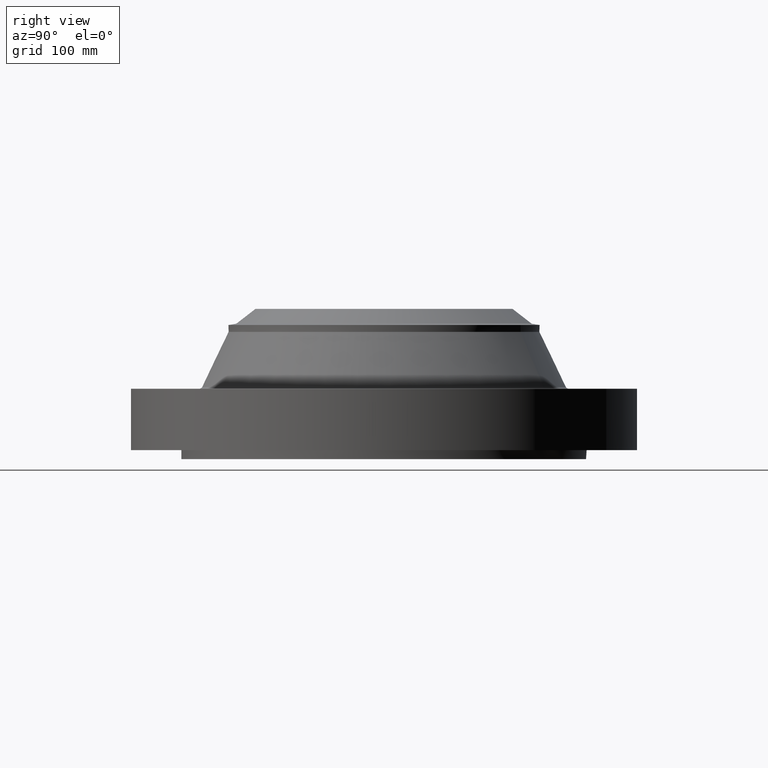
[diagram: clean part render]
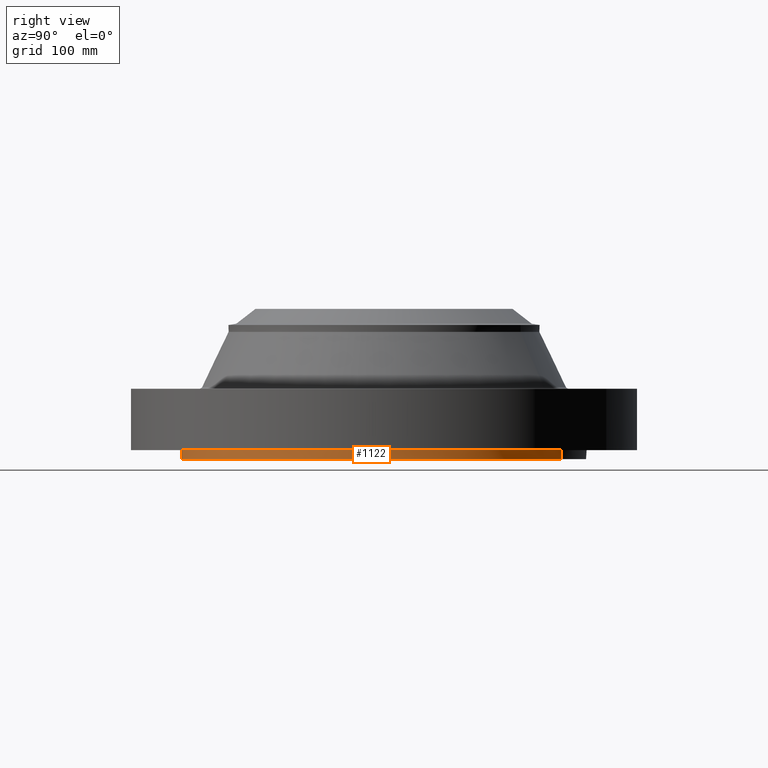
[diagram: same view with one face highlighted and labeled with its STEP entity id]
A machine part, right view. The second image highlights one B-rep face of the part: STEP entity #1122.
In plain terms, the highlighted cylindrical surface (partial cylindrical patch) has radius 177.8 mm, axis along (0, 0, -1).
Its self-contained STEP definition (entity closure, byte-faithful):
#184=AXIS2_PLACEMENT_3D('Circle Axis2P3D',#182,#183,$) ;
#385=AXIS2_PLACEMENT_3D('Circle Axis2P3D',#383,#384,$) ;
#411=AXIS2_PLACEMENT_3D('Circle Axis2P3D',#409,#410,$) ;
#437=AXIS2_PLACEMENT_3D('Circle Axis2P3D',#435,#436,$) ;
#463=AXIS2_PLACEMENT_3D('Circle Axis2P3D',#461,#462,$) ;
#489=AXIS2_PLACEMENT_3D('Circle Axis2P3D',#487,#488,$) ;
#515=AXIS2_PLACEMENT_3D('Circle Axis2P3D',#513,#514,$) ;
#541=AXIS2_PLACEMENT_3D('Circle Axis2P3D',#539,#540,$) ;
#567=AXIS2_PLACEMENT_3D('Circle Axis2P3D',#565,#566,$) ;
#1087=AXIS2_PLACEMENT_3D('Cylinder Axis2P3D',#1084,#1085,#1086) ;
#1091=AXIS2_PLACEMENT_3D('Circle Axis2P3D',#1089,#1090,$) ;
#167=CARTESIAN_POINT('Vertex',(4.94974746833,4.94974746833,-3.14177380524E-012)) ;
#182=CARTESIAN_POINT('Axis2P3D Location',(5.2014301877E-010,8.78804850413E-010,0.)) ;
#186=CARTESIAN_POINT('Vertex',(3.35597877024,6.14307793326,-3.14177380524E-012)) ;
#380=CARTESIAN_POINT('Vertex',(-3.35597877025,-6.14307793326,-3.14177380524E-012)) ;
#383=CARTESIAN_POINT('Axis2P3D Location',(3.58732997813E-009,7.8527180209E-009,0.)) ;
#387=CARTESIAN_POINT('Vertex',(-2.67878402657,-6.4671567276,-3.14177380524E-012)) ;
#409=CARTESIAN_POINT('Axis2P3D Location',(-2.34735205901E-010,-1.3264288705E-009,0.)) ;
#413=CARTESIAN_POINT('Vertex',(2.01413688877E-014,-7.00000000003,-3.14177380524E-012)) ;
#435=CARTESIAN_POINT('Axis2P3D Location',(2.34733947066E-010,-1.32642215671E-009,0.)) ;
#439=CARTESIAN_POINT('Vertex',(2.67878402657,-6.4671567276,-3.14177380524E-012)) ;
#461=CARTESIAN_POINT('Axis2P3D Location',(1.09747130019E-009,-1.71006040474E-009,0.)) ;
#465=CARTESIAN_POINT('Vertex',(4.94974746833,-4.94974746833,-3.14177380524E-012)) ;
#487=CARTESIAN_POINT('Axis2P3D Location',(1.71072171302E-009,-1.09679936174E-009,0.)) ;
#491=CARTESIAN_POINT('Vertex',(6.4671567276,-2.67878402657,-3.14177380524E-012)) ;
#513=CARTESIAN_POINT('Axis2P3D Location',(1.32709689257E-009,-2.34067323704E-010,0.)) ;
#517=CARTESIAN_POINT('Vertex',(7.00000000003,1.95818864186E-014,-3.14177380524E-012)) ;
#539=CARTESIAN_POINT('Axis2P3D Location',(1.32709017878E-009,2.35402248875E-010,0.)) ;
#543=CARTESIAN_POINT('Vertex',(6.4671567276,2.67878402657,-3.14177380524E-012)) ;
#565=CARTESIAN_POINT('Axis2P3D Location',(1.71072842681E-009,1.09813988174E-009,0.)) ;
#1084=CARTESIAN_POINT('Axis2P3D Location',(0.,0.,2.28350000001)) ;
#1089=CARTESIAN_POINT('Axis2P3D Location',(0.,0.,-0.313000000034)) ;
#1093=CARTESIAN_POINT('Vertex',(3.35597877025,6.14307793326,-0.313000000034)) ;
#1095=CARTESIAN_POINT('Vertex',(-3.35597877024,-6.14307793325,-0.313000000001)) ;
#1098=CARTESIAN_POINT('Line Origine',(3.35597877025,6.14307793326,-0.156500000018)) ;
#1103=CARTESIAN_POINT('Line Origine',(-3.35597877025,-6.14307793326,-0.156500000018)) ;
#183=DIRECTION('Axis2P3D Direction',(0.,0.,-0.0393700787402)) ;
#384=DIRECTION('Axis2P3D Direction',(0.,0.,-0.0393700787402)) ;
#410=DIRECTION('Axis2P3D Direction',(0.,0.,-0.0393700787402)) ;
#436=DIRECTION('Axis2P3D Direction',(0.,0.,-0.0393700787402)) ;
#462=DIRECTION('Axis2P3D Direction',(0.,0.,-0.0393700787402)) ;
#488=DIRECTION('Axis2P3D Direction',(0.,0.,-0.0393700787402)) ;
#514=DIRECTION('Axis2P3D Direction',(0.,0.,-0.0393700787402)) ;
#540=DIRECTION('Axis2P3D Direction',(0.,0.,-0.0393700787402)) ;
#566=DIRECTION('Axis2P3D Direction',(0.,0.,-0.0393700787402)) ;
#1085=DIRECTION('Axis2P3D Direction',(0.,0.,-0.0393700787402)) ;
#1086=DIRECTION('Axis2P3D XDirection',(0.0188750212049,0.0345504945626,0.)) ;
#1090=DIRECTION('Axis2P3D Direction',(0.,0.,-0.0393700787402)) ;
#1099=DIRECTION('Vector Direction',(0.,0.,-0.0393700787402)) ;
#1104=DIRECTION('Vector Direction',(0.,0.,-0.0393700787402)) ;
#1100=VECTOR('Line Direction',#1099,0.0393700787402) ;
#1105=VECTOR('Line Direction',#1104,0.0393700787402) ;
#1109=ORIENTED_EDGE('',*,*,#1097,.F.) ;
#1110=ORIENTED_EDGE('',*,*,#1102,.T.) ;
#1111=ORIENTED_EDGE('',*,*,#188,.T.) ;
#1112=ORIENTED_EDGE('',*,*,#569,.T.) ;
#1113=ORIENTED_EDGE('',*,*,#545,.T.) ;
#1114=ORIENTED_EDGE('',*,*,#519,.T.) ;
#1115=ORIENTED_EDGE('',*,*,#493,.T.) ;
#1116=ORIENTED_EDGE('',*,*,#467,.T.) ;
#1117=ORIENTED_EDGE('',*,*,#441,.T.) ;
#1118=ORIENTED_EDGE('',*,*,#415,.T.) ;
#1119=ORIENTED_EDGE('',*,*,#389,.T.) ;
#1120=ORIENTED_EDGE('',*,*,#1107,.F.) ;
#1122=ADVANCED_FACE('PartBody',(#1121),#1088,.T.) ;
#185=CIRCLE('generated circle',#184,6.99999999901) ;
#386=CIRCLE('generated circle',#385,7.00000000865) ;
#412=CIRCLE('generated circle',#411,6.9999999987) ;
#438=CIRCLE('generated circle',#437,6.9999999987) ;
#464=CIRCLE('generated circle',#463,6.99999999802) ;
#490=CIRCLE('generated circle',#489,6.99999999802) ;
#516=CIRCLE('generated circle',#515,6.9999999987) ;
#542=CIRCLE('generated circle',#541,6.9999999987) ;
#568=CIRCLE('generated circle',#567,6.99999999802) ;
#1092=CIRCLE('generated circle',#1091,7.00000000003) ;
#1088=CYLINDRICAL_SURFACE('generated cylinder',#1087,7.00000000003) ;
#188=EDGE_CURVE('',#187,#168,#185,.T.) ;
#389=EDGE_CURVE('',#388,#381,#386,.T.) ;
#415=EDGE_CURVE('',#414,#388,#412,.T.) ;
#441=EDGE_CURVE('',#440,#414,#438,.T.) ;
#467=EDGE_CURVE('',#466,#440,#464,.T.) ;
#493=EDGE_CURVE('',#492,#466,#490,.T.) ;
#519=EDGE_CURVE('',#518,#492,#516,.T.) ;
#545=EDGE_CURVE('',#544,#518,#542,.T.) ;
#569=EDGE_CURVE('',#168,#544,#568,.T.) ;
#1097=EDGE_CURVE('',#1094,#1096,#1092,.T.) ;
#1102=EDGE_CURVE('',#1094,#187,#1101,.F.) ;
#1107=EDGE_CURVE('',#1096,#381,#1106,.F.) ;
#1108=EDGE_LOOP('',(#1109,#1110,#1111,#1112,#1113,#1114,#1115,#1116,#1117,#1118,#1119,#1120)) ;
#1121=FACE_OUTER_BOUND('',#1108,.T.) ;
#1101=LINE('Line',#1098,#1100) ;
#1106=LINE('Line',#1103,#1105) ;
#168=VERTEX_POINT('',#167) ;
#187=VERTEX_POINT('',#186) ;
#381=VERTEX_POINT('',#380) ;
#388=VERTEX_POINT('',#387) ;
#414=VERTEX_POINT('',#413) ;
#440=VERTEX_POINT('',#439) ;
#466=VERTEX_POINT('',#465) ;
#492=VERTEX_POINT('',#491) ;
#518=VERTEX_POINT('',#517) ;
#544=VERTEX_POINT('',#543) ;
#1094=VERTEX_POINT('',#1093) ;
#1096=VERTEX_POINT('',#1095) ;